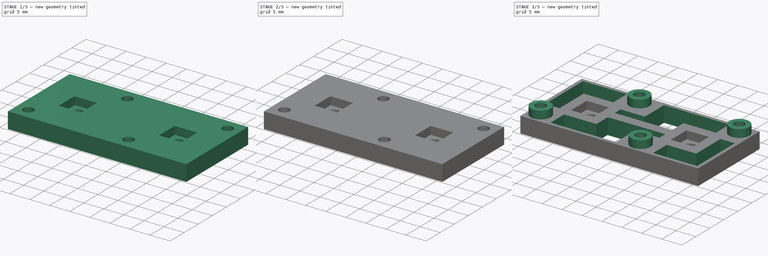
[diagram: build sequence overview — one tinted view per stage of 3, left to right]
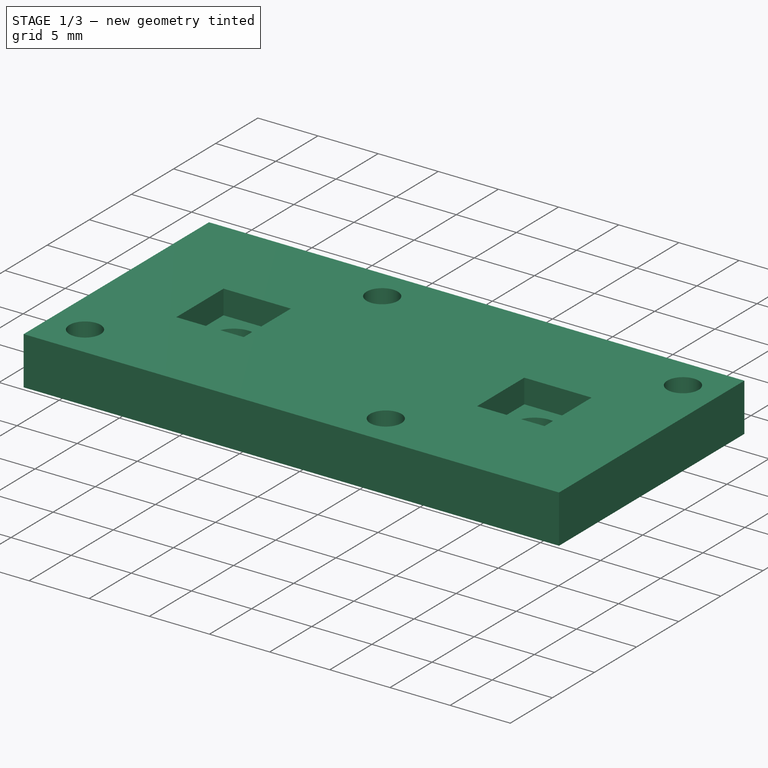
[diagram: stage 1 of 3 — iso view after this stage's code; geometry added in this stage tinted green]
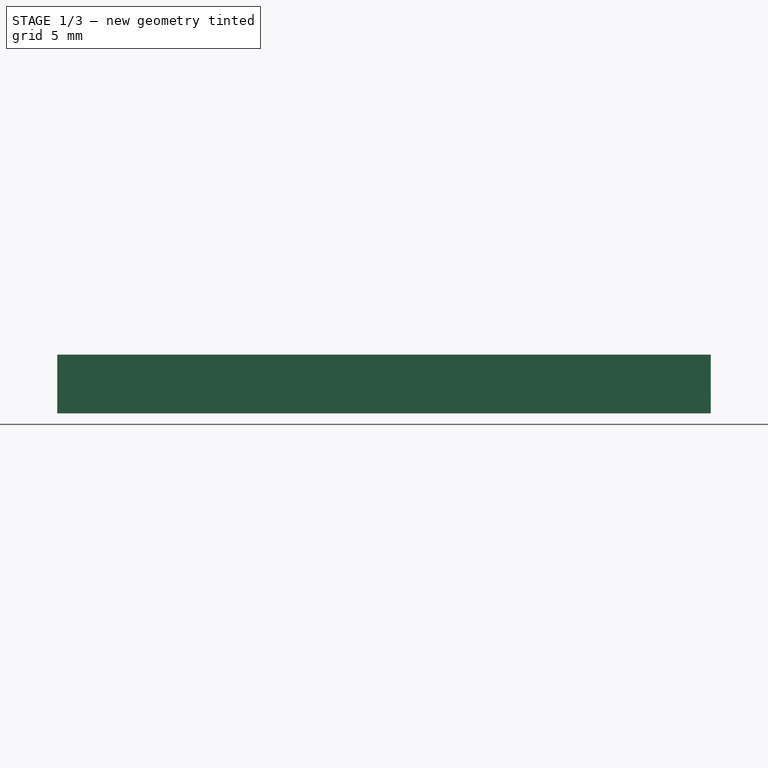
[diagram: stage 1 of 3 — front view after this stage's code; geometry added in this stage tinted green]
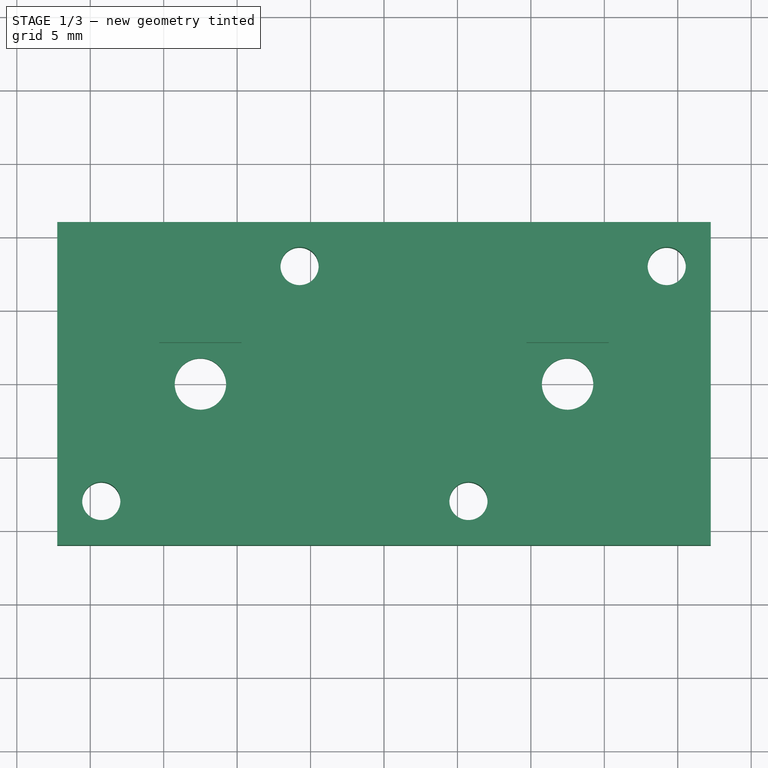
[diagram: stage 1 of 3 — top view after this stage's code; geometry added in this stage tinted green]
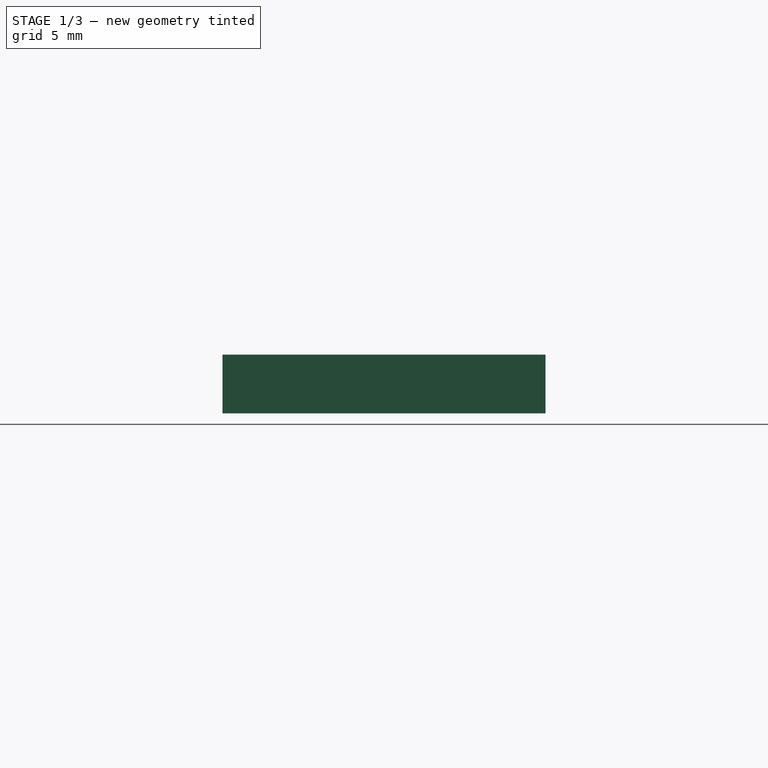
[diagram: stage 1 of 3 — right view after this stage's code; geometry added in this stage tinted green]
FCSTD DOCUMENT  (FreeCAD 0.19R24291 (Git))
Label: ri_parm_step-down-holder
License: All rights reserved
LicenseURL: http://en.wikipedia.org/wiki/All_rights_reserved
objects: Sketcher::SketchObject×5, PartDesign::Pocket×3, PartDesign::Pad×2, Spreadsheet::Sheet×1, PartDesign::Body×1, App::Part×1
note: 16 computed .brp shape members not serialized (recipe doc carries the construction recipe); baked Part::Feature solids carry a one-line shape summary decoded from their .brp

FEATURE [Sketcher::SketchObject] Sketch
  FullyConstrained = true
  MapMode = 5
  Support = -> [XY_Plane001]
  expr: Constraints[25] = .Constraints.Space_R
  expr: Constraints[5] = .Constraints.Vert_Dim
  expr: Constraints[6] = .Constraints.Hor_Dim
  sketch-geometry (10):
    g0: Circle CenterX=-12.5 CenterY=0 CenterZ=0 NormalX=0 NormalY=0 NormalZ=1 AngleXU=0 Radius=1.75
    g1: Circle CenterX=12.5 CenterY=0 CenterZ=0 NormalX=0 NormalY=0 NormalZ=1 AngleXU=0 Radius=1.75
    g2: Circle CenterX=-19.25 CenterY=-8 CenterZ=0 NormalX=0 NormalY=0 NormalZ=1 AngleXU=0 Radius=1.3
    g3: Circle CenterX=-5.75 CenterY=8 CenterZ=0 NormalX=0 NormalY=0 NormalZ=1 AngleXU=0 Radius=1.3
    g4: Circle CenterX=19.25 CenterY=8 CenterZ=0 NormalX=0 NormalY=0 NormalZ=1 AngleXU=0 Radius=1.3
    g5: Circle CenterX=5.75 CenterY=-8 CenterZ=0 NormalX=0 NormalY=0 NormalZ=1 AngleXU=0 Radius=1.3
    g6: LineSegment StartX=-22.25 StartY=11 StartZ=0 EndX=22.25 EndY=11 EndZ=0
    g7: LineSegment StartX=22.25 StartY=11 StartZ=0 EndX=22.25 EndY=-11 EndZ=0
    g8: LineSegment StartX=22.25 StartY=-11 StartZ=0 EndX=-22.25 EndY=-11 EndZ=0
    g9: LineSegment StartX=-22.25 StartY=-11 StartZ=0 EndX=-22.25 EndY=11 EndZ=0
  constraints (26):
    c: PointOnObject(g0,g-1)
    c: Diameter(g0) = 3.5
    c: Equal(g0,g1)
    c: Symmetric(g0,g1,g-1)
    c: DistanceX(g0,g1) = 25
    c: DistanceY(g5,g4) = 16
    c: DistanceX(g5,g4) = 13.5
    c: DistanceX(g2,g3) = 13.5  'Hor_Dim'
    c: Symmetric(g2,g3,g0)
    c: Symmetric(g4,g5,g1)
    c: DistanceY(g2,g3) = 16  'Vert_Dim'
    c: Diameter(g3) = 2.6
    c: Equal(g3,g2)
    c: Equal(g3,g5)
    c: Equal(g3,g4)
    c: Coincident(g6,g7)
    c: Coincident(g7,g8)
    c: Coincident(g8,g9)
    c: Coincident(g9,g6)
    c: Horizontal(g6)
    c: Horizontal(g8)
    c: Vertical(g7)
    c: Vertical(g9)
    c: Symmetric(g8,g6,g-1)
    c: DistanceX(g8,g2) = 3  'Space_R'
    c: DistanceY(g8,g2) = 3
FEATURE [PartDesign::Pad] Pad
  Direction = (1,1,1)
  Length = 4
  Length2 = 100
  Profile = -> Sketch
  Refine = true
  Type = 0
FEATURE [Sketcher::SketchObject] Sketch001
  ExternalGeometry = -> [Pad]
  FullyConstrained = true
  MapMode = 5
  Placement = pos=(0,0,4) rot=(0,0,1;0rad)
  Support = -> [Pad]
  sketch-geometry (8):
    g0: LineSegment StartX=-15.3 StartY=2.8 StartZ=0 EndX=-9.7 EndY=2.8 EndZ=0
    g1: LineSegment StartX=-9.7 StartY=2.8 StartZ=0 EndX=-9.7 EndY=-2.8 EndZ=0
    g2: LineSegment StartX=-9.7 StartY=-2.8 StartZ=0 EndX=-15.3 EndY=-2.8 EndZ=0
    g3: LineSegment StartX=-15.3 StartY=-2.8 StartZ=0 EndX=-15.3 EndY=2.8 EndZ=0
    g4: LineSegment StartX=9.7 StartY=2.8 StartZ=0 EndX=15.3 EndY=2.8 EndZ=0
    g5: LineSegment StartX=15.3 StartY=2.8 StartZ=0 EndX=15.3 EndY=-2.8 EndZ=0
    g6: LineSegment StartX=15.3 StartY=-2.8 StartZ=0 EndX=9.7 EndY=-2.8 EndZ=0
    g7: LineSegment StartX=9.7 StartY=-2.8 StartZ=0 EndX=9.7 EndY=2.8 EndZ=0
  constraints (22):
    c: Coincident(g0,g1)
    c: Coincident(g1,g2)
    c: Coincident(g2,g3)
    c: Coincident(g3,g0)
    c: Horizontal(g0)
    c: Horizontal(g2)
    c: Vertical(g1)
    c: Vertical(g3)
    c: Equal(g0,g3)
    c: Coincident(g4,g5)
    c: Coincident(g5,g6)
    c: Coincident(g6,g7)
    c: Coincident(g7,g4)
    c: Horizontal(g4)
    c: Horizontal(g6)
    c: Vertical(g5)
    c: Vertical(g7)
    c: Equal(g4,g7)
    c: DistanceY(g5,g5) = 5.6
    c: Equal(g3,g5)
    c: Symmetric(g2,g0,g-3)
    c: Symmetric(g6,g4,g-4)
FEATURE [PartDesign::Pocket] Pocket
  BaseFeature = -> Pad
  Length = 2
  Length2 = 100
  Profile = -> Sketch001
  Refine = true
  Type = 0
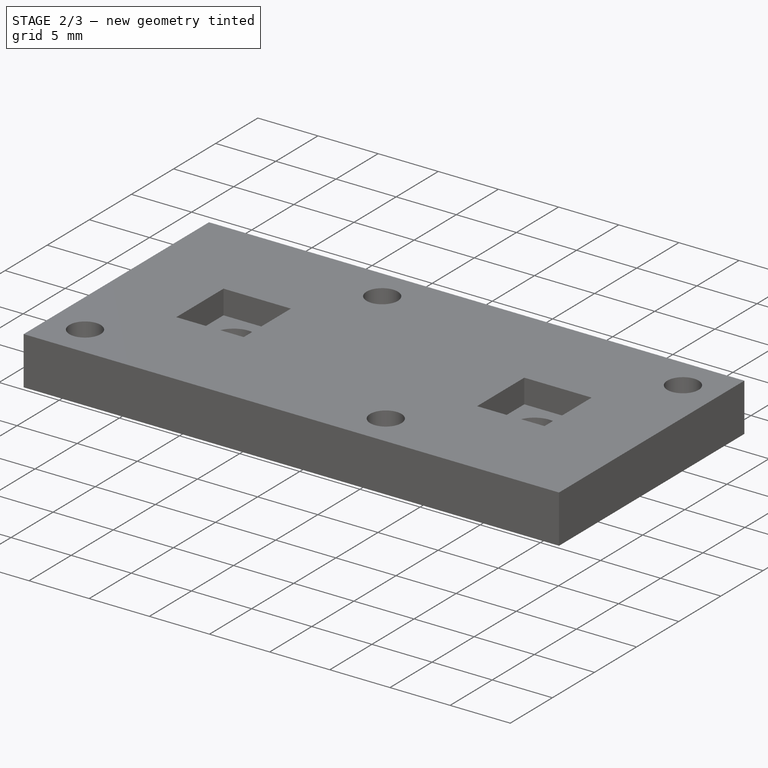
[diagram: stage 2 of 3 — iso view after this stage's code; geometry added in this stage tinted green]
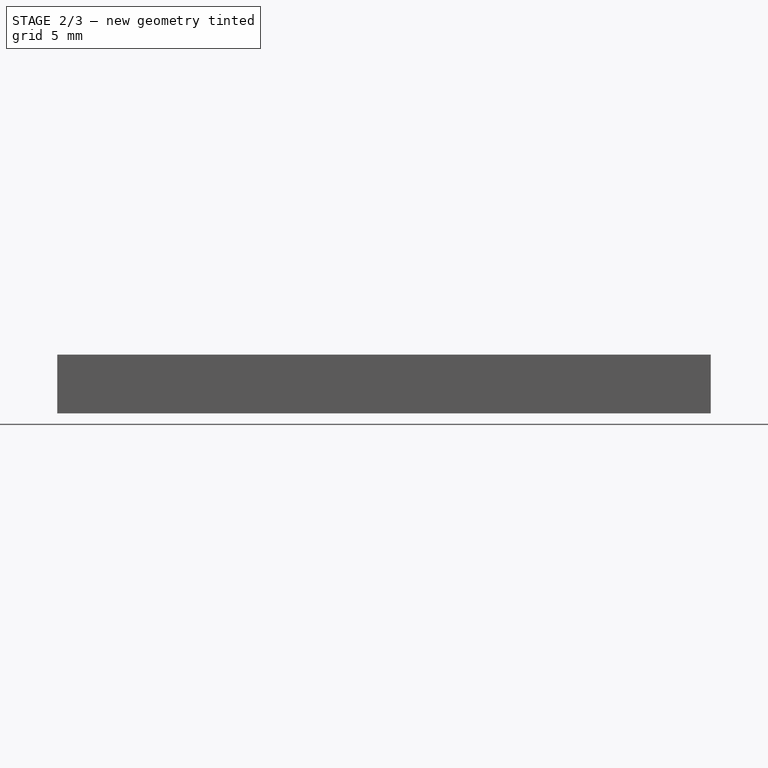
[diagram: stage 2 of 3 — front view after this stage's code; geometry added in this stage tinted green]
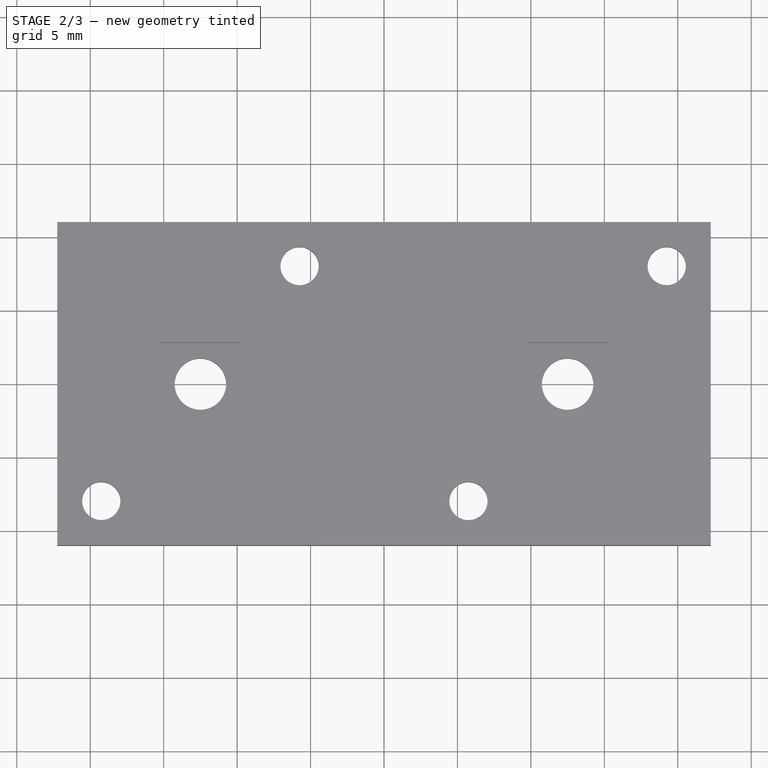
[diagram: stage 2 of 3 — top view after this stage's code; geometry added in this stage tinted green]
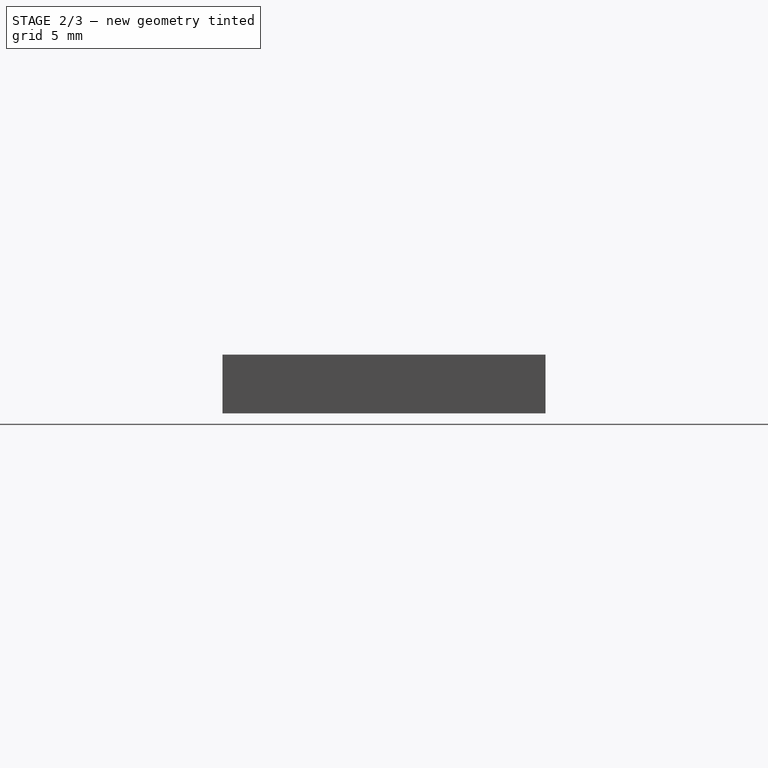
[diagram: stage 2 of 3 — right view after this stage's code; geometry added in this stage tinted green]
FEATURE [Sketcher::SketchObject] Sketch002
  ExternalGeometry = -> [Pocket]
  FullyConstrained = true
  MapMode = 5
  Placement = pos=(0,0,0) rot=(1,0,0;3.14159rad)
  sketch-geometry (16):
    g0: LineSegment StartX=-21.4 StartY=10.15 StartZ=0 EndX=-17.1 EndY=10.15 EndZ=0
    g1: LineSegment StartX=-17.1 StartY=10.15 StartZ=0 EndX=-17.1 EndY=5.85 EndZ=0
    g2: LineSegment StartX=-17.1 StartY=5.85 StartZ=0 EndX=-21.4 EndY=5.85 EndZ=0
    g3: LineSegment StartX=-21.4 StartY=5.85 StartZ=0 EndX=-21.4 EndY=10.15 EndZ=0
    g4: LineSegment StartX=3.6 StartY=10.15 StartZ=0 EndX=7.9 EndY=10.15 EndZ=0
    g5: LineSegment StartX=7.9 StartY=10.15 StartZ=0 EndX=7.9 EndY=5.85 EndZ=0
    g6: LineSegment StartX=7.9 StartY=5.85 StartZ=0 EndX=3.6 EndY=5.85 EndZ=0
    g7: LineSegment StartX=3.6 StartY=5.85 StartZ=0 EndX=3.6 EndY=10.15 EndZ=0
    g8: LineSegment StartX=-7.9 StartY=-5.85 StartZ=0 EndX=-3.6 EndY=-5.85 EndZ=0
    g9: LineSegment StartX=-3.6 StartY=-5.85 StartZ=0 EndX=-3.6 EndY=-10.15 EndZ=0
    g10: LineSegment StartX=-3.6 StartY=-10.15 StartZ=0 EndX=-7.9 EndY=-10.15 EndZ=0
    g11: LineSegment StartX=-7.9 StartY=-10.15 StartZ=0 EndX=-7.9 EndY=-5.85 EndZ=0
    g12: LineSegment StartX=17.1 StartY=-5.85 StartZ=0 EndX=21.4 EndY=-5.85 EndZ=0
    g13: LineSegment StartX=21.4 StartY=-5.85 StartZ=0 EndX=21.4 EndY=-10.15 EndZ=0
    g14: LineSegment StartX=21.4 StartY=-10.15 StartZ=0 EndX=17.1 EndY=-10.15 EndZ=0
    g15: LineSegment StartX=17.1 StartY=-10.15 StartZ=0 EndX=17.1 EndY=-5.85 EndZ=0
  constraints (44):
    c: Coincident(g0,g1)
    c: Coincident(g1,g2)
    c: Coincident(g2,g3)
    c: Coincident(g3,g0)
    c: Horizontal(g0)
    c: Horizontal(g2)
    c: Vertical(g1)
    c: Vertical(g3)
    c: Equal(g1,g2)
    c: Coincident(g4,g5)
    c: Coincident(g5,g6)
    c: Coincident(g6,g7)
    c: Coincident(g7,g4)
    c: Horizontal(g4)
    c: Horizontal(g6)
    c: Vertical(g5)
    c: Vertical(g7)
    c: Coincident(g8,g9)
    c: Coincident(g9,g10)
    c: Coincident(g10,g11)
    c: Coincident(g11,g8)
    c: Horizontal(g8)
    c: Horizontal(g10)
    c: Vertical(g9)
    c: Vertical(g11)
    c: Coincident(g12,g13)
    c: Coincident(g13,g14)
    c: Coincident(g14,g15)
    c: Coincident(g15,g12)
    c: Horizontal(g12)
    c: Horizontal(g14)
    c: Vertical(g13)
    c: Vertical(g15)
    c: Equal(g2,g5)
    c: Equal(g5,g6)
    c: Equal(g2,g8)
    c: Equal(g2,g12)
    c: Equal(g8,g9)
    c: Equal(g12,g13)
    c: DistanceY(g1,g1) = 4.3
    c: Symmetric(g2,g0,g-3)
    c: Symmetric(g6,g4,g-4)
    c: Symmetric(g10,g8,g-5)
    c: Symmetric(g14,g12,g-6)
FEATURE [PartDesign::Pocket] Pocket001
  BaseFeature = -> Pocket
  Length = 2
  Length2 = 100
  Profile = -> Sketch002
  Refine = true
  Type = 0
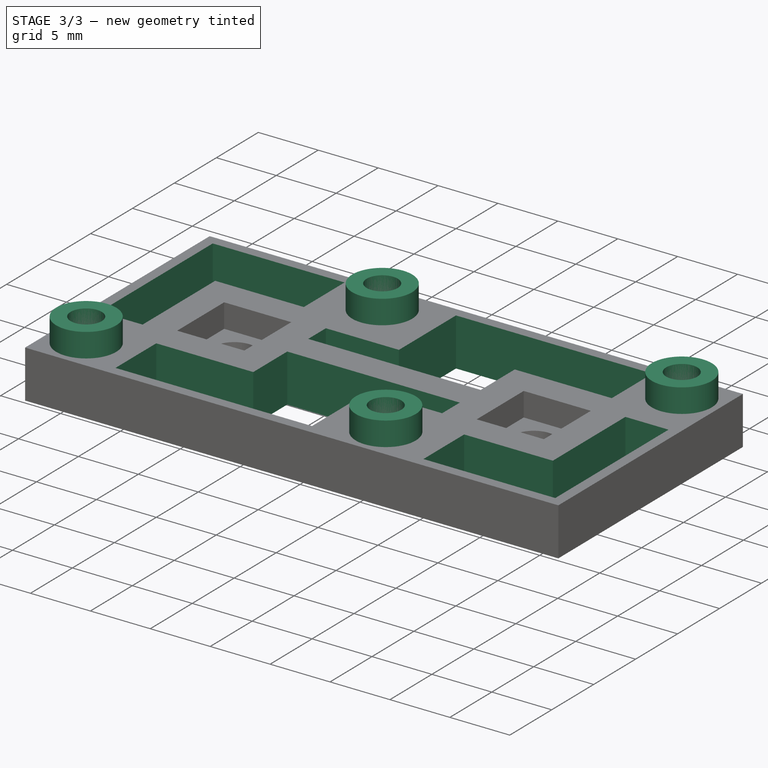
[diagram: stage 3 of 3 — iso view after this stage's code; geometry added in this stage tinted green]
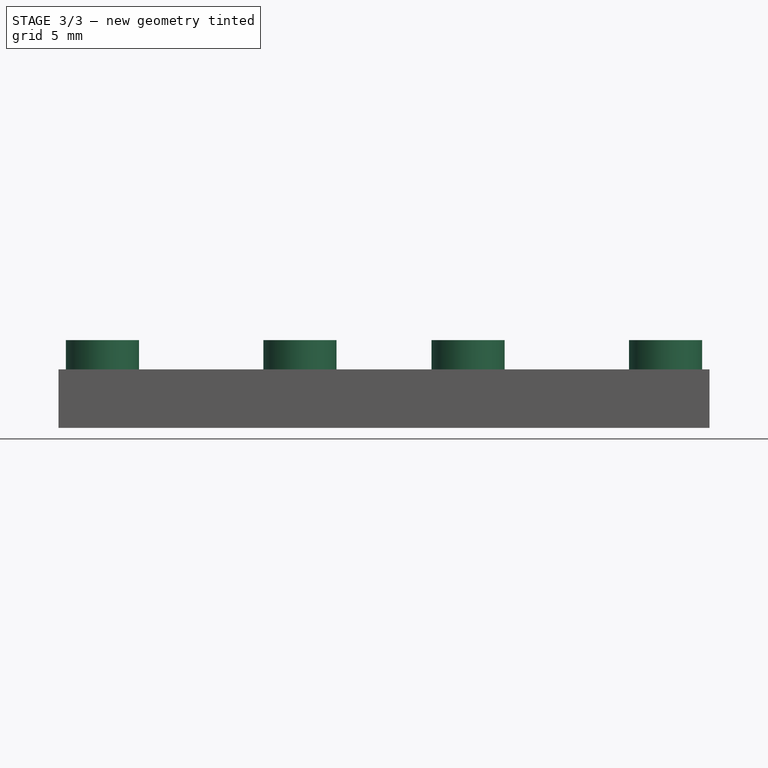
[diagram: stage 3 of 3 — front view after this stage's code; geometry added in this stage tinted green]
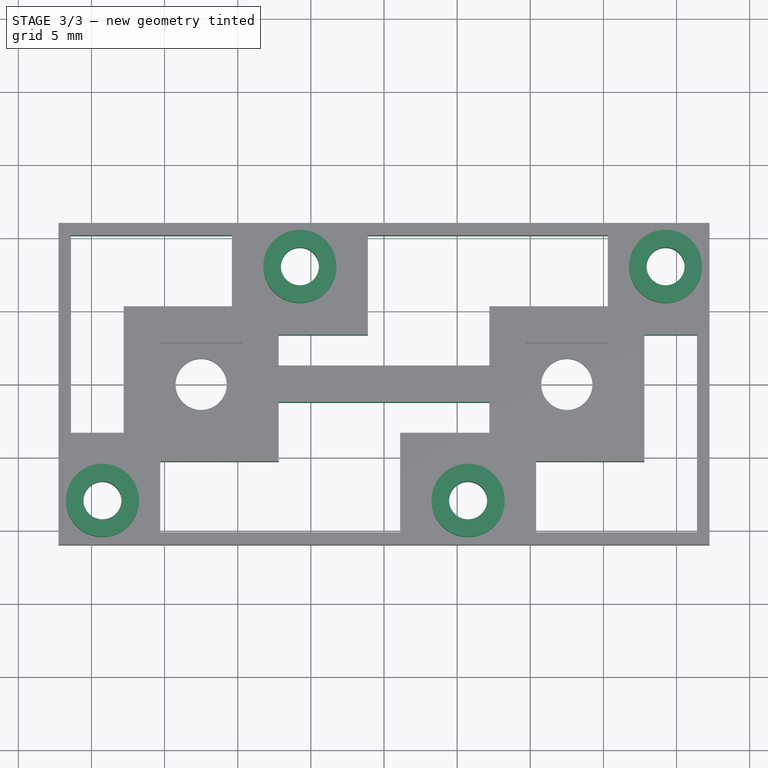
[diagram: stage 3 of 3 — top view after this stage's code; geometry added in this stage tinted green]
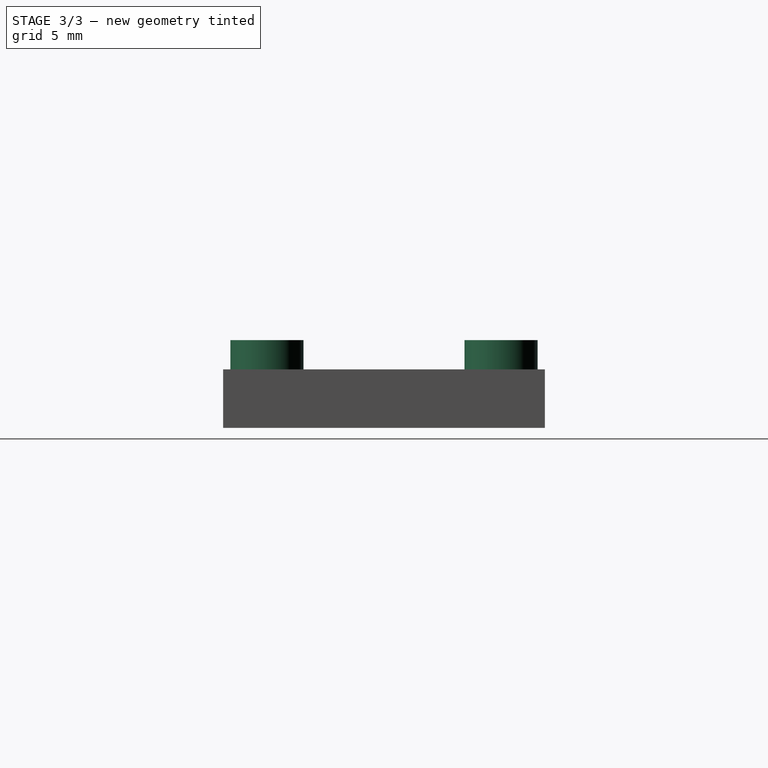
[diagram: stage 3 of 3 — right view after this stage's code; geometry added in this stage tinted green]
FEATURE [Sketcher::SketchObject] Sketch003
  ExternalGeometry = -> [Pocket001]
  FullyConstrained = true
  MapMode = 5
  Placement = pos=(0,0,4) rot=(0,0,1;0rad)
  Support = -> [Pocket001]
  sketch-geometry (10):
    g0: Circle CenterX=-5.75 CenterY=8 CenterZ=0 NormalX=0 NormalY=0 NormalZ=1 AngleXU=0 Radius=2.5
    g1: Circle CenterX=19.25 CenterY=8 CenterZ=0 NormalX=0 NormalY=0 NormalZ=1 AngleXU=0 Radius=1.3
    g2: Circle CenterX=5.75 CenterY=-8 CenterZ=0 NormalX=0 NormalY=0 NormalZ=1 AngleXU=0 Radius=1.3
    g3: Circle CenterX=-19.25 CenterY=-8 CenterZ=0 NormalX=0 NormalY=0 NormalZ=1 AngleXU=0 Radius=1.3
    g4: Circle CenterX=-5.75 CenterY=8 CenterZ=0 NormalX=0 NormalY=0 NormalZ=1 AngleXU=0 Radius=1.3
    g5: Circle CenterX=-19.25 CenterY=-8 CenterZ=0 NormalX=0 NormalY=0 NormalZ=1 AngleXU=0 Radius=2.5
    g6: Circle CenterX=5.75 CenterY=-8 CenterZ=0 NormalX=0 NormalY=0 NormalZ=1 AngleXU=0 Radius=2.5
    g7: Circle CenterX=19.25 CenterY=8 CenterZ=0 NormalX=0 NormalY=0 NormalZ=1 AngleXU=0 Radius=2.5
    g8: GeomPoint X=-4.45 Y=8 Z=0
    g9: GeomPoint X=-3.25 Y=8 Z=0
  constraints (20):
    c: Coincident(g4,g0)
    c: Coincident(g5,g3)
    c: Coincident(g6,g2)
    c: Coincident(g7,g1)
    c: PointOnObject(g8,g4)
    c: PointOnObject(g9,g0)
    c: Horizontal(g8,g9)
    c: Horizontal(g8,g0)
    c: DistanceX(g8,g9) = 1.2
    c: Coincident(g-4,g0)
    c: PointOnObject(g8,g-4)
    c: Coincident(g-5,g3)
    c: Coincident(g-6,g2)
    c: Coincident(g-3,g1)
    c: Equal(g4,g1)
    c: Equal(g4,g3)
    c: Equal(g4,g2)
    c: Equal(g0,g5)
    c: Equal(g0,g7)
    c: Equal(g0,g6)
FEATURE [PartDesign::Pad] Pad001
  BaseFeature = -> Pocket001
  Direction = (1,1,1)
  Length = 2
  Length2 = 100
  Profile = -> Sketch003
  Refine = true
  Type = 0
FEATURE [Sketcher::SketchObject] Sketch004
  ExternalGeometry = -> [Pad001]
  FullyConstrained = true
  MapMode = 5
  Placement = pos=(0,0,4) rot=(0,0,1;0rad)
  Support = -> [Pad001]
  expr: Constraints[76] = Spreadsheet.distance
  expr: Constraints[75] = Spreadsheet.distance
  expr: Constraints[74] = Spreadsheet.distance
  expr: Constraints[67] = Spreadsheet.distance
  expr: Constraints[66] = Spreadsheet.distance
  expr: Constraints[62] = Spreadsheet.distance
  expr: Constraints[61] = Spreadsheet.distance
  expr: Constraints[60] = Spreadsheet.distance
  expr: Constraints[73] = Spreadsheet.distance
  expr: Constraints[59] = Spreadsheet.distance
  expr: Constraints[71] = Spreadsheet.distance
  expr: Constraints[58] = Spreadsheet.distance
  expr: Constraints[72] = Spreadsheet.distance
  expr: Constraints[57] = Spreadsheet.distance
  expr: Constraints[68] = Spreadsheet.distance
  expr: Constraints[56] = Spreadsheet.distance
  sketch-geometry (30):
    g0: LineSegment StartX=-21.4 StartY=10.15 StartZ=0 EndX=-10.4 EndY=10.15 EndZ=0
    g1: LineSegment StartX=-10.4 StartY=10.15 StartZ=0 EndX=-10.4 EndY=5.3 EndZ=0
    g2: LineSegment StartX=-10.4 StartY=5.3 StartZ=0 EndX=-17.8 EndY=5.3 EndZ=0
    g3: LineSegment StartX=-17.8 StartY=5.3 StartZ=0 EndX=-17.8 EndY=-3.35 EndZ=0
    g4: LineSegment StartX=-17.8 StartY=-3.35 StartZ=0 EndX=-21.4 EndY=-3.35 EndZ=0
    g5: LineSegment StartX=-21.4 StartY=-3.35 StartZ=0 EndX=-21.4 EndY=10.15 EndZ=0
    g6: LineSegment StartX=17.8 StartY=3.35 StartZ=0 EndX=21.4 EndY=3.35 EndZ=0
    g7: LineSegment StartX=21.4 StartY=3.35 StartZ=0 EndX=21.4 EndY=-10.15 EndZ=0
    g8: LineSegment StartX=21.4 StartY=-10.15 StartZ=0 EndX=10.4 EndY=-10.15 EndZ=0
    g9: LineSegment StartX=10.4 StartY=-10.15 StartZ=0 EndX=10.4 EndY=-5.3 EndZ=0
    g10: LineSegment StartX=10.4 StartY=-5.3 StartZ=0 EndX=17.8 EndY=-5.3 EndZ=0
    g11: LineSegment StartX=17.8 StartY=-5.3 StartZ=0 EndX=17.8 EndY=3.35 EndZ=0
    g12: LineSegment StartX=-1.1 StartY=10.15 StartZ=0 EndX=-1.1 EndY=3.35 EndZ=0
    g13: LineSegment StartX=-1.1 StartY=3.35 StartZ=0 EndX=-7.2 EndY=3.35 EndZ=0
    g14: LineSegment StartX=-7.2 StartY=3.35 StartZ=0 EndX=-7.2 EndY=1.25 EndZ=0
    g15: LineSegment StartX=-7.2 StartY=1.25 StartZ=0 EndX=7.2 EndY=1.25 EndZ=0
    g16: LineSegment StartX=7.2 StartY=1.25 StartZ=0 EndX=7.2 EndY=5.3 EndZ=0
    g17: LineSegment StartX=7.2 StartY=5.3 StartZ=0 EndX=15.3 EndY=5.3 EndZ=0
    g18: LineSegment StartX=15.3 StartY=5.3 StartZ=0 EndX=15.3 EndY=10.15 EndZ=0
    g19: LineSegment StartX=15.3 StartY=10.15 StartZ=0 EndX=-1.1 EndY=10.15 EndZ=0
    g20: LineSegment StartX=-15.3 StartY=-5.3 StartZ=0 EndX=-15.3 EndY=-10.15 EndZ=0
    g21: LineSegment StartX=-15.3 StartY=-10.15 StartZ=0 EndX=1.1 EndY=-10.15 EndZ=0
    g22: LineSegment StartX=1.1 StartY=-10.15 StartZ=0 EndX=1.1 EndY=-3.35 EndZ=0
    g23: LineSegment StartX=1.1 StartY=-3.35 StartZ=0 EndX=7.2 EndY=-3.35 EndZ=0
    g24: LineSegment StartX=7.2 StartY=-3.35 StartZ=0 EndX=7.2 EndY=-1.25 EndZ=0
    g25: LineSegment StartX=7.2 StartY=-1.25 StartZ=0 EndX=-7.2 EndY=-1.25 EndZ=0
    g26: LineSegment StartX=-7.2 StartY=-1.25 StartZ=0 EndX=-7.2 EndY=-5.3 EndZ=0
    g27: LineSegment StartX=-7.2 StartY=-5.3 StartZ=0 EndX=-15.3 EndY=-5.3 EndZ=0
    g28: GeomPoint X=6e-16 Y=1.25 Z=0
    g29: GeomPoint X=-6e-16 Y=-1.25 Z=0
  constraints (77):
    c: Coincident(g0,g1)
    c: Vertical(g1)
    c: Coincident(g1,g2)
    c: Coincident(g2,g3)
    c: Vertical(g3)
    c: Coincident(g3,g4)
    c: Coincident(g4,g5)
    c: Coincident(g5,g0)
    c: Vertical(g5)
    c: Horizontal(g6)
    c: Coincident(g6,g7)
    c: Vertical(g7)
    c: Coincident(g7,g8)
    c: Coincident(g8,g9)
    c: Vertical(g9)
    c: Coincident(g9,g10)
    c: Horizontal(g10)
    c: Coincident(g10,g11)
    c: Coincident(g11,g6)
    c: Vertical(g11)
    c: Vertical(g12)
    c: Coincident(g12,g13)
    c: Coincident(g13,g14)
    c: Vertical(g14)
    c: Coincident(g14,g15)
    c: Horizontal(g15)
    c: Coincident(g15,g16)
    c: Vertical(g16)
    c: Coincident(g16,g17)
    c: Horizontal(g17)
    c: Coincident(g17,g18)
    c: Coincident(g18,g19)
    c: Coincident(g19,g12)
    c: Coincident(g20,g21)
    c: Coincident(g21,g22)
    c: Vertical(g22)
    c: Coincident(g22,g23)
    c: Coincident(g23,g24)
    c: Coincident(g24,g25)
    c: Horizontal(g25)
    c: Coincident(g25,g26)
    c: Coincident(g26,g27)
    c: Coincident(g27,g20)
    c: Horizontal(g4)
    c: Horizontal(g27)
    c: Horizontal(g13)
    c: Horizontal(g23)
    c: Horizontal(g2)
    c: Tangent(g-13,g0)
    c: Tangent(g-13,g19)
    c: Tangent(g-22,g8)
    c: Tangent(g-22,g21)
    c: Tangent(g16,g24)
    c: Tangent(g14,g26)
    c: Tangent(g20,g-4)
    c: Tangent(g-9,g18)
    c: DistanceX(g3,g-5) = 2.5
    c: DistanceX(g23,g-10) = 2.5
    c: DistanceX(g-9,g6) = 2.5
    c: DistanceY(g-6,g1) = 2.5
    c: DistanceY(g-8,g16) = 2.5
    c: DistanceY(g10,g-10) = 2.5
    c: DistanceY(g20,g-5) = 2.5
    c: Symmetric(g14,g15,g28)
    c: Symmetric(g25,g24,g29)
    c: Symmetric(g28,g29,g-1)
    c: DistanceY(g25,g14) = 2.5
    c: DistanceY(g6,g-18) = 2.5
    c: DistanceY(g-15,g4) = 2.5
    c: Vertical(g4,g-15)
    c: Vertical(g6,g-18)
    c: DistanceY(g12,g-14) = 2.5
    c: DistanceY(g-21,g23) = 2.5
    c: DistanceX(g-21,g9) = 2.5
    c: DistanceX(g21,g-22) = 2.5
    c: DistanceX(g0,g-13) = 2.5
    c: DistanceX(g-14,g12) = 2.5
FEATURE [Spreadsheet::Sheet] Spreadsheet
  cells = A1=Distance; B1(distance)=2.5
FEATURE [PartDesign::Pocket] Pocket002
  BaseFeature = -> Pad001
  Length = 5
  Length2 = 100
  Profile = -> Sketch004
  Refine = true
  Type = 1
FEATURE [PartDesign::Body] Body
  Group = -> [Sketch,Pad,Sketch001,Sketch002,Pocket,Pocket001,Sketch003,Pad001,Sketch004,Pocket002]
  Origin = -> Origin001
  Tip = -> Pocket002
FEATURE [App::Part] Part
  Group = -> [Body]
  Origin = -> Origin
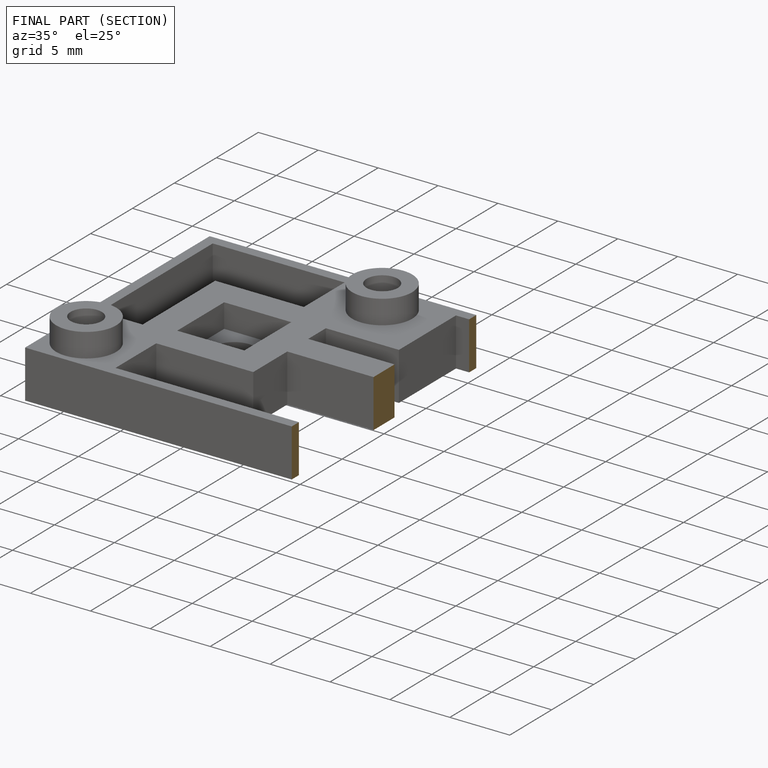
[diagram: finished part — half-section view (interior)]
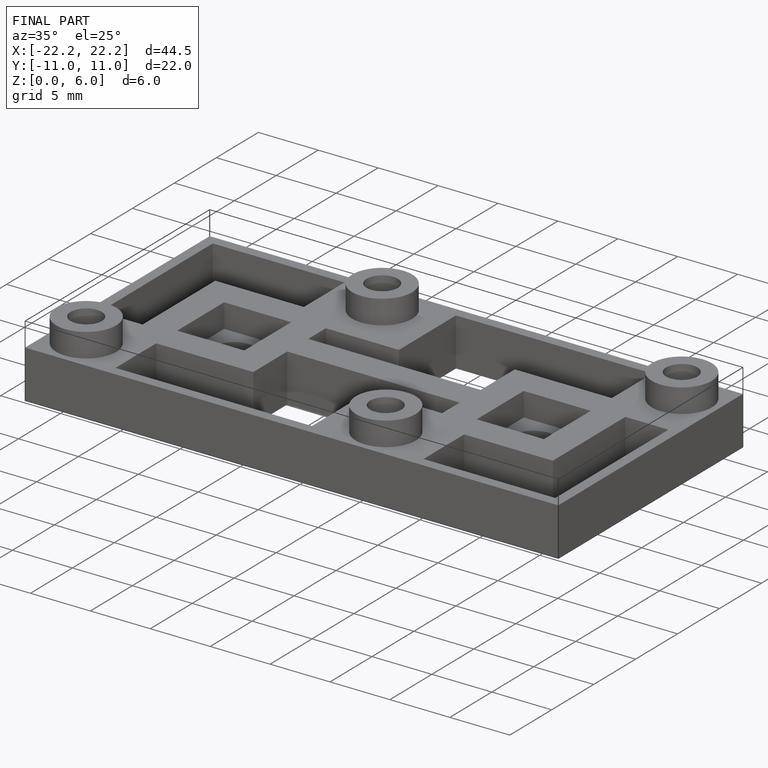
[diagram: finished part — iso view with bounding-box wireframe]
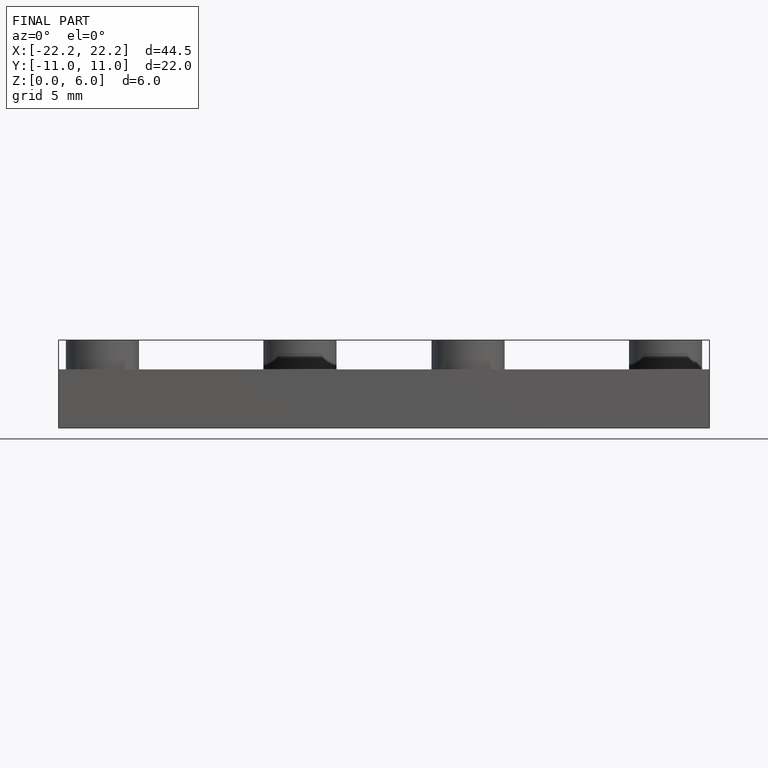
[diagram: finished part — front view with bounding-box wireframe]
